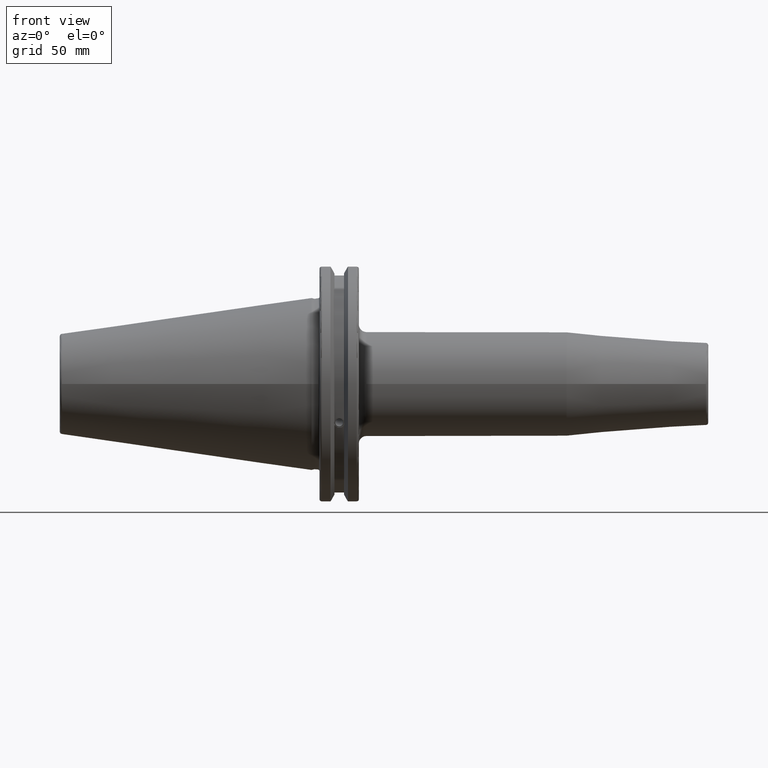
[diagram: clean part render]
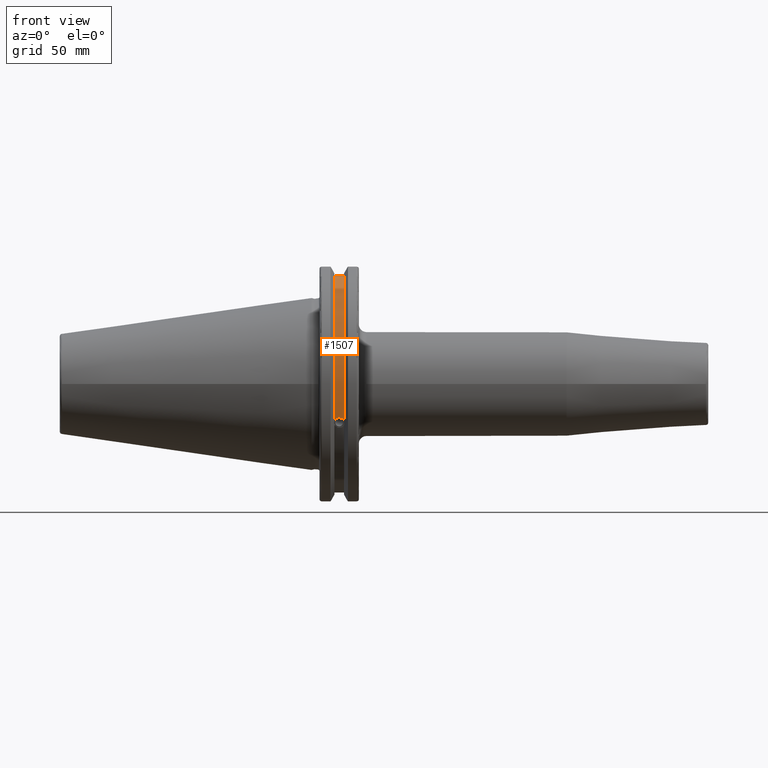
[diagram: same view with one face highlighted and labeled with its STEP entity id]
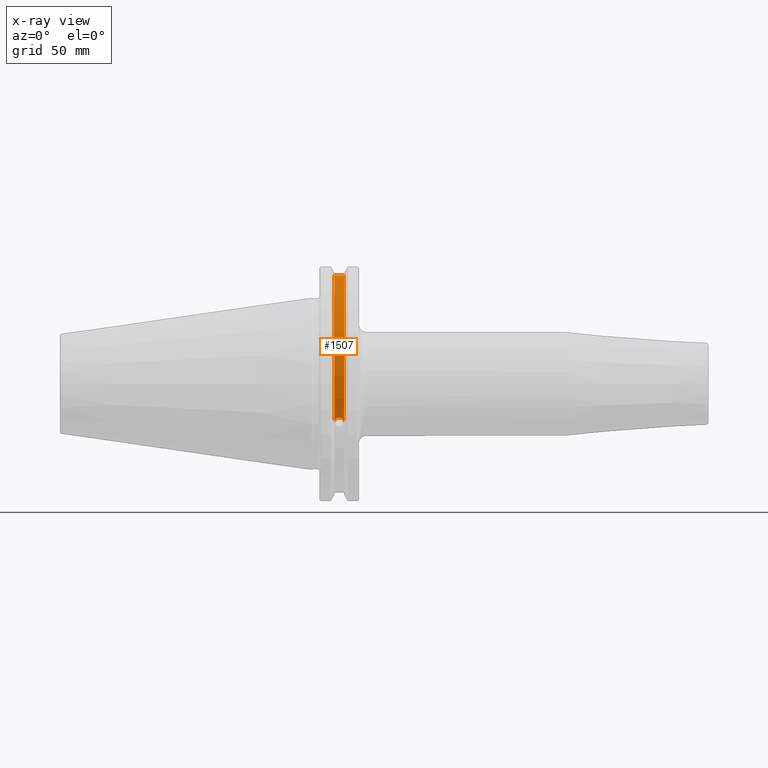
[diagram: x-ray of the same camera — body ghosted, the highlighted face saturated]
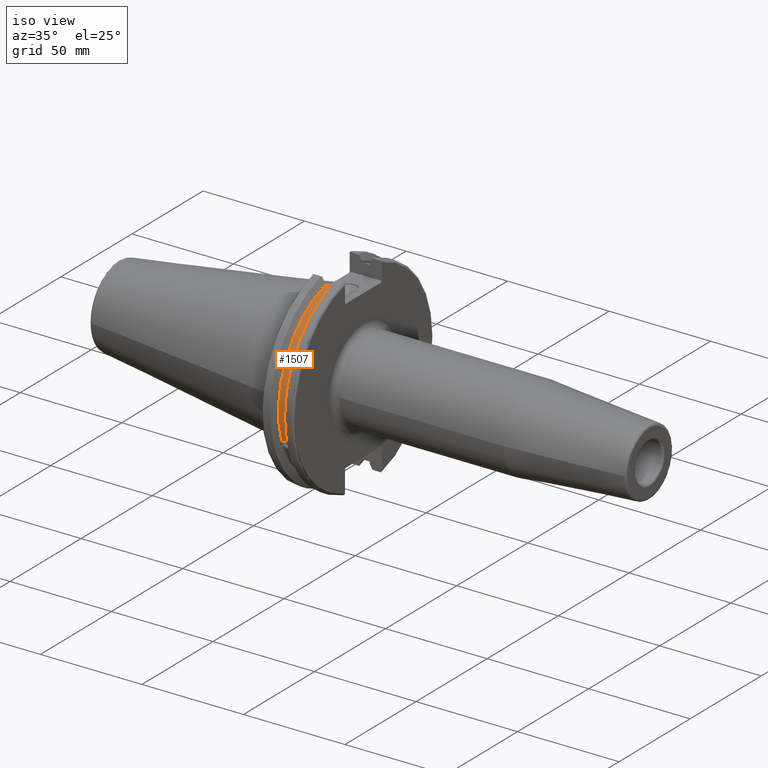
[diagram: same view with one face highlighted and labeled with its STEP entity id]
A machine part, front view. The second image highlights one B-rep face of the part: STEP entity #1507.
The next image is the same camera in x-ray: the body ghosted, the highlighted face saturated — about 0% of this face is hidden behind the body in this view.
A second angle (iso view) of the same face is appended — the face is thin or edge-on in the first view.
In plain terms, the highlighted cylindrical surface (partial cylindrical patch) has radius 45.6435 mm, axis along (1, 0, 0).
Its self-contained STEP definition (entity closure, byte-faithful):
#42=B_SPLINE_CURVE_WITH_KNOTS('',3,(#2380,#2381,#2382,#2383,#2384,#2385,
#2386,#2387,#2388,#2389,#2390,#2391,#2392,#2393),.UNSPECIFIED.,.F.,.F.,
(4,2,2,2,2,2,4),(0.40154831257669,0.474697095495631,0.553813286063443,0.632929476631254,
0.712045667199066,0.791161857766877,0.864310640685818),.UNSPECIFIED.);
#144=LINE('',#2859,#234);
#234=VECTOR('',#1959,10.);
#288=CYLINDRICAL_SURFACE('',#1689,45.6435);
#428=FACE_OUTER_BOUND('',#532,.T.);
#532=EDGE_LOOP('',(#1408,#1409,#1410,#1411));
#606=CIRCLE('',#1688,45.6435);
#607=CIRCLE('',#1690,45.6435);
#650=VERTEX_POINT('',#2377);
#651=VERTEX_POINT('',#2379);
#730=VERTEX_POINT('',#2856);
#731=VERTEX_POINT('',#2858);
#811=EDGE_CURVE('',#651,#650,#42,.T.);
#916=EDGE_CURVE('',#731,#730,#144,.T.);
#974=EDGE_CURVE('',#730,#651,#606,.T.);
#975=EDGE_CURVE('',#731,#650,#607,.T.);
#1408=ORIENTED_EDGE('',*,*,#811,.T.);
#1409=ORIENTED_EDGE('',*,*,#975,.F.);
#1410=ORIENTED_EDGE('',*,*,#916,.T.);
#1411=ORIENTED_EDGE('',*,*,#974,.T.);
#1507=ADVANCED_FACE('',(#428),#288,.T.);
#1688=AXIS2_PLACEMENT_3D('',#3025,#2096,#2097);
#1689=AXIS2_PLACEMENT_3D('',#3026,#2098,#2099);
#1690=AXIS2_PLACEMENT_3D('',#3027,#2100,#2101);
#1959=DIRECTION('',(-1.,0.,0.));
#2096=DIRECTION('center_axis',(1.,0.,0.));
#2097=DIRECTION('ref_axis',(0.,0.,-1.));
#2098=DIRECTION('center_axis',(1.,0.,0.));
#2099=DIRECTION('ref_axis',(0.,-0.888619069115281,0.458645996390125));
#2100=DIRECTION('center_axis',(1.,0.,0.));
#2101=DIRECTION('ref_axis',(0.,0.,-1.));
#2377=CARTESIAN_POINT('',(13.0491,-43.1779814500336,-14.7983448449669));
#2379=CARTESIAN_POINT('',(9.2191,-43.1779814500336,-14.7983448449669));
#2380=CARTESIAN_POINT('Ctrl Pts',(9.2191,-43.1779814500335,-14.7983448449669));
#2381=CARTESIAN_POINT('Ctrl Pts',(9.32532177598176,-43.2545173750974,-14.5750315766731));
#2382=CARTESIAN_POINT('Ctrl Pts',(9.47680807557665,-43.3223492818373,-14.3712521044637));
#2383=CARTESIAN_POINT('Ctrl Pts',(9.83560503400179,-43.4340904392251,-14.0300988117073));
#2384=CARTESIAN_POINT('Ctrl Pts',(10.0717203280543,-43.4832903960863,-13.8760243976176));
#2385=CARTESIAN_POINT('Ctrl Pts',(10.5891059167872,-43.54802519266,-13.6715068146718));
#2386=CARTESIAN_POINT('Ctrl Pts',(10.870379364774,-43.5636826100883,-13.6211104428929));
#2387=CARTESIAN_POINT('Ctrl Pts',(11.397820635226,-43.5636826100883,-13.6211104428929));
#2388=CARTESIAN_POINT('Ctrl Pts',(11.6790940832128,-43.54802519266,-13.6715068146718));
#2389=CARTESIAN_POINT('Ctrl Pts',(12.1964796719457,-43.4832903960863,-13.8760243976176));
#2390=CARTESIAN_POINT('Ctrl Pts',(12.4325949659982,-43.4340904392251,-14.0300988117073));
#2391=CARTESIAN_POINT('Ctrl Pts',(12.7913919244233,-43.3223492818373,-14.3712521044637));
#2392=CARTESIAN_POINT('Ctrl Pts',(12.9428782240182,-43.2545173750974,-14.5750315766731));
#2393=CARTESIAN_POINT('Ctrl Pts',(13.0491,-43.1779814500335,-14.7983448449669));
#2856=CARTESIAN_POINT('',(9.2191,-12.95,43.7678716897452));
#2858=CARTESIAN_POINT('',(13.0491,-12.95,43.7678716897452));
#2859=CARTESIAN_POINT('',(11.1341,-12.95,43.7678716897452));
#3025=CARTESIAN_POINT('Origin',(9.2191,0.,0.));
#3026=CARTESIAN_POINT('Origin',(11.1341,0.,0.));
#3027=CARTESIAN_POINT('Origin',(13.0491,0.,0.));